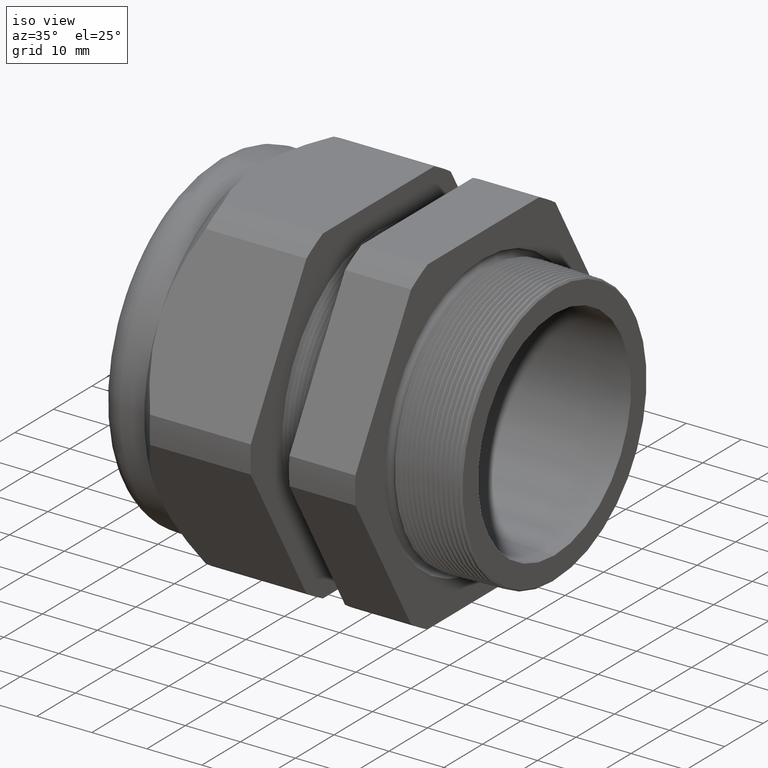
[diagram: clean part render]
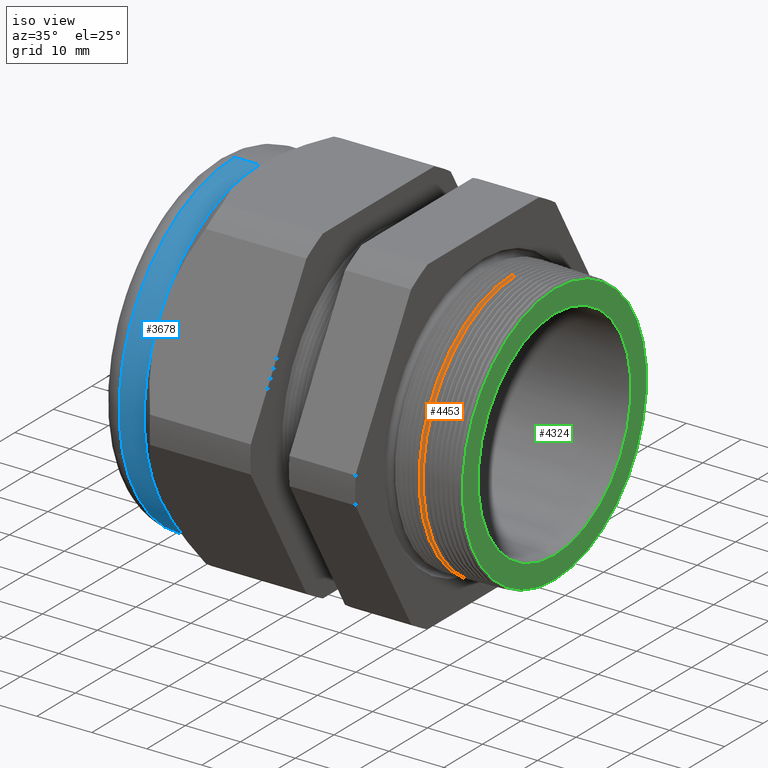
[diagram: same view with three faces highlighted in distinct colors, each labeled with its STEP entity id]
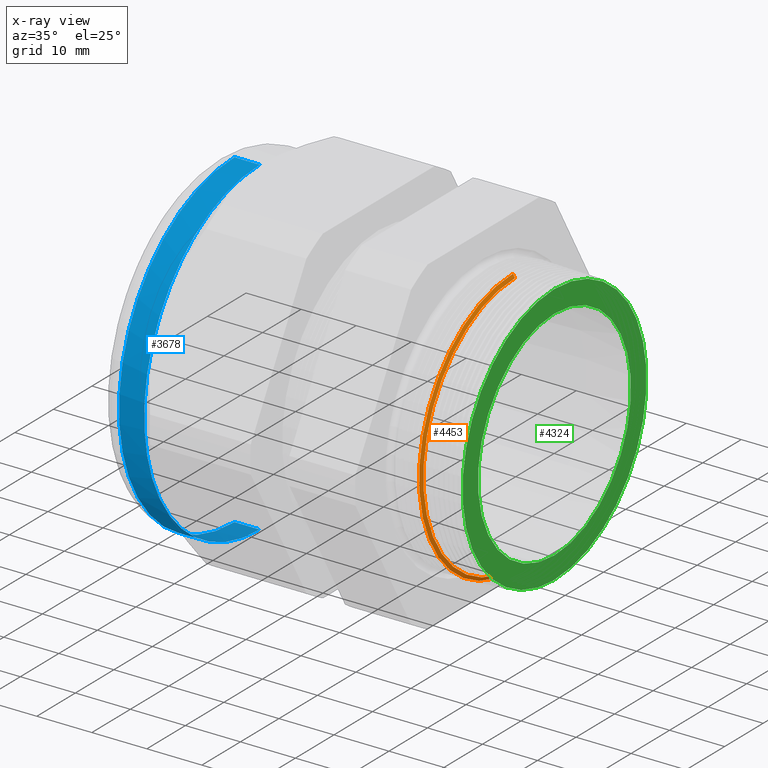
[diagram: x-ray of the same camera — body ghosted, the three highlighted faces saturated]
A machine part, iso view with three faces highlighted in distinct colors.
The next image is the same camera in x-ray (body ghosted, the three faces saturated) — at least one of them is partly hidden behind the body in this view.
Their STEP definitions:

[orange] entity #4453 — the highlighted conical surface has half-angle 61.5 deg.
#960 = CARTESIAN_POINT ( 'NONE',  ( -0.09999999999999996400, 1.182264110800053100E-016, -0.9653919086084179500 ) ) ;
#961 = LINE ( 'NONE', #960, #1024 ) ;
#973 = DIRECTION ( 'NONE',  ( -0.4771587602596165100, 0.0000000000000000000, 0.8788171126619609400 ) ) ;
#974 = VECTOR ( 'NONE', #973, 39.37007874015748100 ) ;
#975 = CARTESIAN_POINT ( 'NONE',  ( -0.09999999999999996400, 0.0000000000000000000, 0.9653919086084179500 ) ) ;
#976 = LINE ( 'NONE', #975, #974 ) ;
#1022 = CARTESIAN_POINT ( 'NONE',  ( -0.09697120011612848900, 1.175531422544454800E-016, -0.9598135531626821300 ) ) ;
#1023 = DIRECTION ( 'NONE',  ( -0.4771587602596165100, 1.076240564057389400E-016, -0.8788171126619609400 ) ) ;
#1024 = VECTOR ( 'NONE', #1023, 39.37007874015748100 ) ;
#1151 = CARTESIAN_POINT ( 'NONE',  ( -0.09697120011612848900, 0.0000000000000000000, 0.9598135531626821300 ) ) ;
#1166 = CARTESIAN_POINT ( 'NONE',  ( -0.08347073567907534200, 1.160207319848350000E-016, -0.9349487908145880400 ) ) ;
#1805 = DIRECTION ( 'NONE',  ( 0.0000000000000000000, 0.0000000000000000000, -1.000000000000000000 ) ) ;
#1806 = DIRECTION ( 'NONE',  ( 1.000000000000000000, 0.0000000000000000000, 0.0000000000000000000 ) ) ;
#1807 = CARTESIAN_POINT ( 'NONE',  ( -0.08347073567907534200, 0.0000000000000000000, 0.0000000000000000000 ) ) ;
#1808 = AXIS2_PLACEMENT_3D ( 'NONE', #1807, #1806, #1805 ) ;
#1809 = CIRCLE ( 'NONE', #1808, 0.9349487908145880400 ) ;
#2113 = DIRECTION ( 'NONE',  ( 0.0000000000000000000, 0.0000000000000000000, 1.000000000000000000 ) ) ;
#2114 = DIRECTION ( 'NONE',  ( -1.000000000000000000, 0.0000000000000000000, 0.0000000000000000000 ) ) ;
#2115 = CARTESIAN_POINT ( 'NONE',  ( -0.09999999999999996400, 0.0000000000000000000, 0.0000000000000000000 ) ) ;
#2116 = AXIS2_PLACEMENT_3D ( 'NONE', #2115, #2114, #2113 ) ;
#2118 = CONICAL_SURFACE ( 'NONE', #2116, 0.9653919086084179500, 1.073377489976503400 ) ;
#2119 = FACE_OUTER_BOUND ( 'NONE', #4451, .T. ) ;
#2251 = DIRECTION ( 'NONE',  ( 0.0000000000000000000, 0.0000000000000000000, 1.000000000000000000 ) ) ;
#2252 = DIRECTION ( 'NONE',  ( 1.000000000000000000, 0.0000000000000000000, 0.0000000000000000000 ) ) ;
#2253 = CARTESIAN_POINT ( 'NONE',  ( -0.09697120011612848900, 0.0000000000000000000, 0.0000000000000000000 ) ) ;
#2254 = AXIS2_PLACEMENT_3D ( 'NONE', #2253, #2252, #2251 ) ;
#2255 = CIRCLE ( 'NONE', #2254, 0.9598135531626821300 ) ;
#3269 = CARTESIAN_POINT ( 'NONE',  ( -0.08347073567907534200, 0.0000000000000000000, 0.9349487908145880400 ) ) ;
#3823 = EDGE_CURVE ( 'NONE', #5073, #3952, #976, .T. ) ;
#3828 = EDGE_CURVE ( 'NONE', #3942, #3829, #961, .T. ) ;
#3829 = VERTEX_POINT ( 'NONE', #1022 ) ;
#3942 = VERTEX_POINT ( 'NONE', #1166 ) ;
#3944 = ORIENTED_EDGE ( 'NONE', *, *, #3828, .F. ) ;
#3952 = VERTEX_POINT ( 'NONE', #1151 ) ;
#4243 = ORIENTED_EDGE ( 'NONE', *, *, #3823, .T. ) ;
#4248 = ORIENTED_EDGE ( 'NONE', *, *, #4527, .T. ) ;
#4249 = EDGE_CURVE ( 'NONE', #5073, #3942, #1809, .T. ) ;
#4253 = ORIENTED_EDGE ( 'NONE', *, *, #4249, .F. ) ;
#4451 = EDGE_LOOP ( 'NONE', ( #3944, #4253, #4243, #4248 ) ) ;
#4453 = ADVANCED_FACE ( 'NONE', ( #2119 ), #2118, .T. ) ;
#4527 = EDGE_CURVE ( 'NONE', #3952, #3829, #2255, .T. ) ;
#5073 = VERTEX_POINT ( 'NONE', #3269 ) ;

[blue] entity #3678 — the highlighted cylindrical surface (partial cylindrical patch) has radius 29.972 mm, axis along (1, 0, 0).
#10 = EDGE_CURVE ( 'NONE', #5047, #14, #89, .T. ) ;
#14 = VERTEX_POINT ( 'NONE', #148 ) ;
#87 = VECTOR ( 'NONE', #149, 39.37007874015748100 ) ;
#88 = CARTESIAN_POINT ( 'NONE',  ( 0.0000000000000000000, 1.445083222993876800E-016, 1.179999999999999900 ) ) ;
#89 = LINE ( 'NONE', #88, #87 ) ;
#148 = CARTESIAN_POINT ( 'NONE',  ( -1.909291999999999500, 0.0000000000000000000, 1.179999999999999900 ) ) ;
#149 = DIRECTION ( 'NONE',  ( 1.000000000000000000, 0.0000000000000000000, 0.0000000000000000000 ) ) ;
#733 = DIRECTION ( 'NONE',  ( 0.0000000000000000000, 0.0000000000000000000, -1.000000000000000000 ) ) ;
#734 = DIRECTION ( 'NONE',  ( 1.000000000000000000, 0.0000000000000000000, 0.0000000000000000000 ) ) ;
#735 = CARTESIAN_POINT ( 'NONE',  ( 0.0000000000000000000, 0.0000000000000000000, 0.0000000000000000000 ) ) ;
#736 = AXIS2_PLACEMENT_3D ( 'NONE', #735, #734, #733 ) ;
#737 = CYLINDRICAL_SURFACE ( 'NONE', #736, 1.179999999999999900 ) ;
#738 = FACE_OUTER_BOUND ( 'NONE', #3756, .T. ) ;
#749 = DIRECTION ( 'NONE',  ( 0.0000000000000000000, 0.0000000000000000000, -1.000000000000000000 ) ) ;
#750 = DIRECTION ( 'NONE',  ( 1.000000000000000000, 0.0000000000000000000, 0.0000000000000000000 ) ) ;
#751 = CARTESIAN_POINT ( 'NONE',  ( -1.909291999999999500, 0.0000000000000000000, 0.0000000000000000000 ) ) ;
#752 = AXIS2_PLACEMENT_3D ( 'NONE', #751, #750, #749 ) ;
#753 = CIRCLE ( 'NONE', #752, 1.179999999999999900 ) ;
#754 = DIRECTION ( 'NONE',  ( 0.0000000000000000000, 0.0000000000000000000, -1.000000000000000000 ) ) ;
#755 = DIRECTION ( 'NONE',  ( 1.000000000000000000, 0.0000000000000000000, 0.0000000000000000000 ) ) ;
#756 = AXIS2_PLACEMENT_3D ( 'NONE', #761, #755, #754 ) ;
#757 = CIRCLE ( 'NONE', #756, 1.179999999999999900 ) ;
#761 = CARTESIAN_POINT ( 'NONE',  ( -1.909291999999999500, 0.0000000000000000000, 0.0000000000000000000 ) ) ;
#799 = DIRECTION ( 'NONE',  ( 0.0000000000000000000, 0.0000000000000000000, -1.000000000000000000 ) ) ;
#800 = DIRECTION ( 'NONE',  ( 1.000000000000000000, 0.0000000000000000000, 0.0000000000000000000 ) ) ;
#801 = AXIS2_PLACEMENT_3D ( 'NONE', #809, #800, #799 ) ;
#802 = CIRCLE ( 'NONE', #801, 1.179999999999999900 ) ;
#809 = CARTESIAN_POINT ( 'NONE',  ( -1.909291999999999500, 0.0000000000000000000, 0.0000000000000000000 ) ) ;
#925 = DIRECTION ( 'NONE',  ( 0.0000000000000000000, 0.0000000000000000000, 1.000000000000000000 ) ) ;
#926 = DIRECTION ( 'NONE',  ( 1.000000000000000000, 0.0000000000000000000, 0.0000000000000000000 ) ) ;
#927 = CARTESIAN_POINT ( 'NONE',  ( -2.089999999999999400, 0.0000000000000000000, 0.0000000000000000000 ) ) ;
#928 = AXIS2_PLACEMENT_3D ( 'NONE', #927, #926, #925 ) ;
#929 = CIRCLE ( 'NONE', #928, 1.179999999999999900 ) ;
#1483 = CARTESIAN_POINT ( 'NONE',  ( -1.909291999999999500, -1.021909976465637600, 0.5899999999999993000 ) ) ;
#1576 = CARTESIAN_POINT ( 'NONE',  ( -1.909291999999999500, -1.021909976465637600, -0.5899999999999998600 ) ) ;
#2486 = CARTESIAN_POINT ( 'NONE',  ( -1.909291999999999500, 0.0000000000000000000, -1.179999999999999900 ) ) ;
#2555 = DIRECTION ( 'NONE',  ( 1.000000000000000000, 0.0000000000000000000, 0.0000000000000000000 ) ) ;
#2556 = VECTOR ( 'NONE', #2555, 39.37007874015748100 ) ;
#2557 = CARTESIAN_POINT ( 'NONE',  ( 0.0000000000000000000, 0.0000000000000000000, -1.179999999999999900 ) ) ;
#2558 = LINE ( 'NONE', #2557, #2556 ) ;
#3234 = CARTESIAN_POINT ( 'NONE',  ( -2.089999999999999400, 0.0000000000000000000, -1.179999999999999900 ) ) ;
#3235 = CARTESIAN_POINT ( 'NONE',  ( -2.089999999999999400, 1.445083222993876800E-016, 1.179999999999999900 ) ) ;
#3667 = ORIENTED_EDGE ( 'NONE', *, *, #3669, .F. ) ;
#3668 = ORIENTED_EDGE ( 'NONE', *, *, #4720, .T. ) ;
#3669 = EDGE_CURVE ( 'NONE', #4124, #4159, #757, .T. ) ;
#3671 = EDGE_CURVE ( 'NONE', #4159, #4643, #753, .T. ) ;
#3672 = ORIENTED_EDGE ( 'NONE', *, *, #3671, .F. ) ;
#3678 = ADVANCED_FACE ( 'NONE', ( #738 ), #737, .T. ) ;
#3716 = EDGE_CURVE ( 'NONE', #14, #4124, #802, .T. ) ;
#3722 = ORIENTED_EDGE ( 'NONE', *, *, #3716, .F. ) ;
#3755 = ORIENTED_EDGE ( 'NONE', *, *, #10, .F. ) ;
#3756 = EDGE_LOOP ( 'NONE', ( #3755, #3758, #3668, #3672, #3667, #3722 ) ) ;
#3757 = EDGE_CURVE ( 'NONE', #5047, #5048, #929, .T. ) ;
#3758 = ORIENTED_EDGE ( 'NONE', *, *, #3757, .T. ) ;
#4124 = VERTEX_POINT ( 'NONE', #1483 ) ;
#4159 = VERTEX_POINT ( 'NONE', #1576 ) ;
#4643 = VERTEX_POINT ( 'NONE', #2486 ) ;
#4720 = EDGE_CURVE ( 'NONE', #5048, #4643, #2558, .T. ) ;
#5047 = VERTEX_POINT ( 'NONE', #3235 ) ;
#5048 = VERTEX_POINT ( 'NONE', #3234 ) ;

[green] entity #4324 — the highlighted planar face has unit normal (1, 0, 0).
#1861 = DIRECTION ( 'NONE',  ( 0.0000000000000000000, 0.0000000000000000000, -1.000000000000000000 ) ) ;
#1862 = DIRECTION ( 'NONE',  ( -1.000000000000000000, 0.0000000000000000000, 0.0000000000000000000 ) ) ;
#1863 = AXIS2_PLACEMENT_3D ( 'NONE', #1868, #1862, #1861 ) ;
#1864 = CIRCLE ( 'NONE', #1863, 0.9406125166880655600 ) ;
#1868 = CARTESIAN_POINT ( 'NONE',  ( 0.2000000000000000400, 0.0000000000000000000, 0.0000000000000000000 ) ) ;
#1880 = DIRECTION ( 'NONE',  ( 1.000000000000000000, 0.0000000000000000000, 0.0000000000000000000 ) ) ;
#1881 = CARTESIAN_POINT ( 'NONE',  ( 0.2000000000000000400, 0.7820370886081360300, 0.0000000000000000000 ) ) ;
#1882 = AXIS2_PLACEMENT_3D ( 'NONE', #1881, #1880, #1943 ) ;
#1883 = PLANE ( 'NONE',  #1882 ) ;
#1884 = FACE_BOUND ( 'NONE', #4434, .T. ) ;
#1889 = FACE_OUTER_BOUND ( 'NONE', #4291, .T. ) ;
#1943 = DIRECTION ( 'NONE',  ( 0.0000000000000000000, 0.0000000000000000000, -1.000000000000000000 ) ) ;
#2011 = CIRCLE ( 'NONE', #2070, 0.9406125166880655600 ) ;
#2041 = DIRECTION ( 'NONE',  ( 0.0000000000000000000, 0.0000000000000000000, -1.000000000000000000 ) ) ;
#2042 = DIRECTION ( 'NONE',  ( 1.000000000000000000, 0.0000000000000000000, 0.0000000000000000000 ) ) ;
#2043 = CARTESIAN_POINT ( 'NONE',  ( 0.2000000000000000400, 0.0000000000000000000, 0.0000000000000000000 ) ) ;
#2044 = AXIS2_PLACEMENT_3D ( 'NONE', #2043, #2042, #2041 ) ;
#2045 = CIRCLE ( 'NONE', #2044, 0.7820370886081360300 ) ;
#2065 = CARTESIAN_POINT ( 'NONE',  ( 0.2000000000000000400, 1.151918107799975800E-016, 0.9406125166880655600 ) ) ;
#2066 = CARTESIAN_POINT ( 'NONE',  ( 0.2000000000000000400, 0.0000000000000000000, -0.9406125166880655600 ) ) ;
#2067 = DIRECTION ( 'NONE',  ( 0.0000000000000000000, 0.0000000000000000000, -1.000000000000000000 ) ) ;
#2068 = DIRECTION ( 'NONE',  ( -1.000000000000000000, 0.0000000000000000000, 0.0000000000000000000 ) ) ;
#2069 = CARTESIAN_POINT ( 'NONE',  ( 0.2000000000000000400, 0.0000000000000000000, 0.0000000000000000000 ) ) ;
#2070 = AXIS2_PLACEMENT_3D ( 'NONE', #2069, #2068, #2067 ) ;
#2456 = CIRCLE ( 'NONE', #2519, 0.7820370886081360300 ) ;
#2461 = CARTESIAN_POINT ( 'NONE',  ( 0.2000000000000000400, 0.0000000000000000000, 0.0000000000000000000 ) ) ;
#2484 = CARTESIAN_POINT ( 'NONE',  ( 0.2000000000000000400, 9.577192173784689300E-017, 0.7820370886081360300 ) ) ;
#2485 = CARTESIAN_POINT ( 'NONE',  ( 0.2000000000000000400, 0.0000000000000000000, -0.7820370886081360300 ) ) ;
#2517 = DIRECTION ( 'NONE',  ( 0.0000000000000000000, 0.0000000000000000000, -1.000000000000000000 ) ) ;
#2518 = DIRECTION ( 'NONE',  ( 1.000000000000000000, 0.0000000000000000000, 0.0000000000000000000 ) ) ;
#2519 = AXIS2_PLACEMENT_3D ( 'NONE', #2461, #2518, #2517 ) ;
#4291 = EDGE_LOOP ( 'NONE', ( #4311, #4468 ) ) ;
#4293 = EDGE_CURVE ( 'NONE', #4407, #4412, #1864, .T. ) ;
#4311 = ORIENTED_EDGE ( 'NONE', *, *, #4293, .F. ) ;
#4324 = ADVANCED_FACE ( 'NONE', ( #1889, #1884 ), #1883, .T. ) ;
#4406 = EDGE_CURVE ( 'NONE', #4412, #4407, #2011, .T. ) ;
#4407 = VERTEX_POINT ( 'NONE', #2066 ) ;
#4412 = VERTEX_POINT ( 'NONE', #2065 ) ;
#4419 = ORIENTED_EDGE ( 'NONE', *, *, #4661, .F. ) ;
#4426 = EDGE_CURVE ( 'NONE', #4647, #4648, #2045, .T. ) ;
#4434 = EDGE_LOOP ( 'NONE', ( #4435, #4419 ) ) ;
#4435 = ORIENTED_EDGE ( 'NONE', *, *, #4426, .F. ) ;
#4468 = ORIENTED_EDGE ( 'NONE', *, *, #4406, .F. ) ;
#4647 = VERTEX_POINT ( 'NONE', #2485 ) ;
#4648 = VERTEX_POINT ( 'NONE', #2484 ) ;
#4661 = EDGE_CURVE ( 'NONE', #4648, #4647, #2456, .T. ) ;